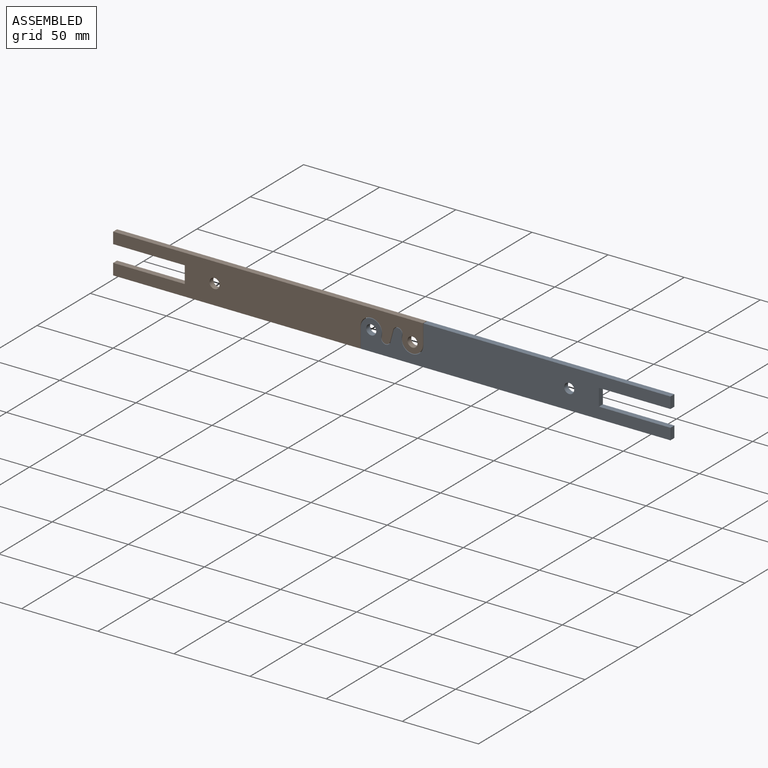
[diagram: assembled view]
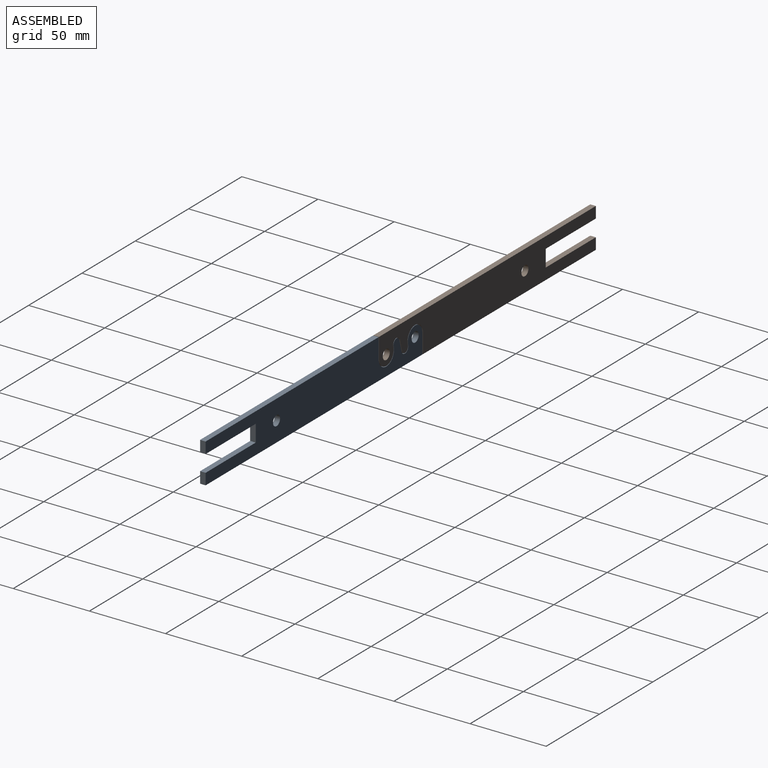
[diagram: assembled view, second angle]
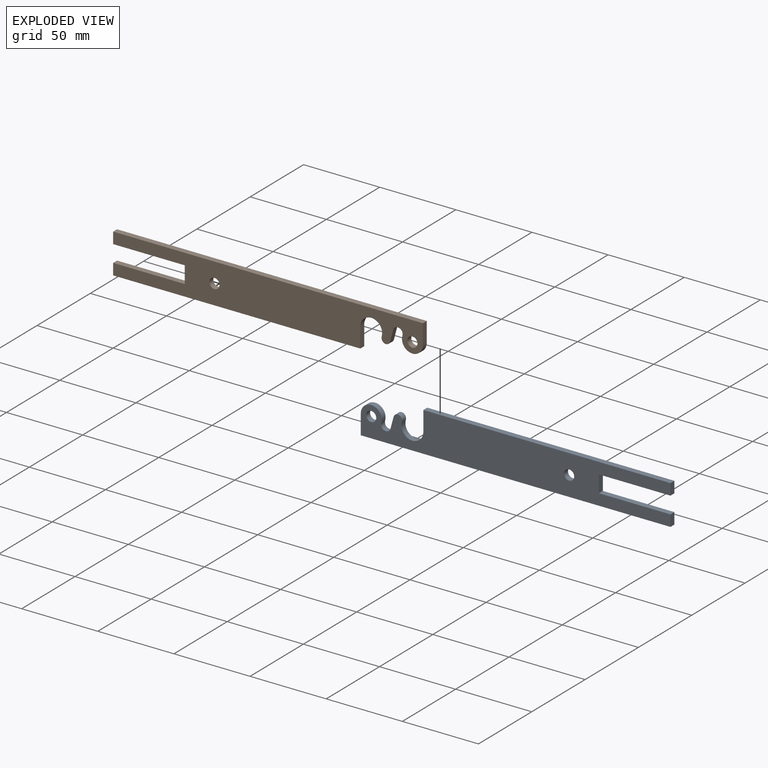
[diagram: exploded view]
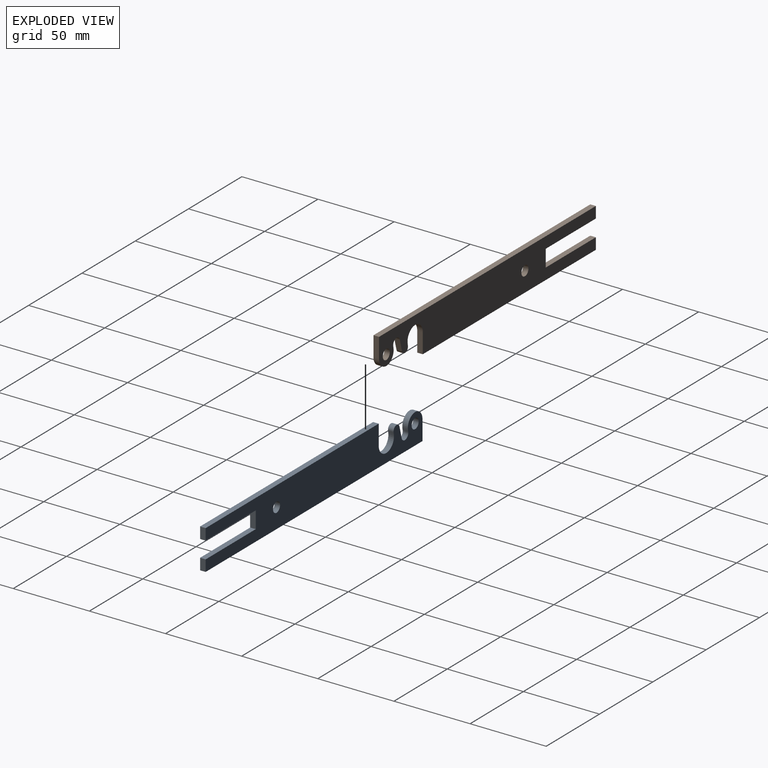
[diagram: exploded view, second angle]
ASSEMBLY  parts=2 mates=2
PART A: 20 faces, bbox 203.4x3.7x26 mm
  f0: cylinder r=3.3mm len=6.6mm, axis (0,1,0), area 75.7mm2, adj f1,f16
  f1: plane 203.39x26mm, normal (0,1,0), area 4150.7mm2, adj f0,f2,f3,f4,f5,f6,f7,f8
  f2: cylinder r=3.3mm len=6.6mm, axis (0,1,0), area 75.7mm2, adj f1,f16
  f3: plane 13x3.65mm, normal (1,0,0), area 47.4mm2, adj f1,f4,f12,f16
  f4: cylinder r=7.15mm len=14.3mm, axis (0,1,0), area 86.5mm2, adj f1,f3,f5,f16
  f5: plane 3.65x1.26mm, normal (-0.98,0,0.17), area 4.7mm2, adj f1,f4,f6,f16
  f6: cylinder r=2.85mm len=5.6mm, axis (0,1,0), area 31.8mm2, adj f1,f5,f7,f16
  f7: plane 7.55x3.65mm, normal (0.97,0,-0.26), area 28.5mm2, adj f1,f6,f8,f16
  f8: cylinder r=3.15mm len=6.19mm, axis (0,1,0), area 35.1mm2, adj f1,f7,f9,f16
  f9: plane 3.65x1.26mm, normal (-0.98,0,0.17), area 4.7mm2, adj f1,f8,f10,f16
  f10: cylinder r=6.85mm len=13.7mm, axis (0,1,0), area 82.9mm2, adj f1,f9,f11,f16
  f11: plane 13x3.65mm, normal (1,0,0), area 47.4mm2, adj f1,f10,f16,f17
  f12: plane 162.32x3.65mm, normal (0,0,-1), area 592.4mm2, adj f1,f3,f16,f19
  f13: plane 47x3.65mm, normal (0,0,-1), area 171.5mm2, adj f1,f15,f16,f18
  f14: plane 47x3.65mm, normal (0,0,1), area 171.5mm2, adj f1,f15,f16,f19
  f15: plane 11.14x3.65mm, normal (-1,0,0), area 40.7mm2, adj f1,f13,f14,f16
  f16: plane 203.39x26mm, normal (0,-1,0), area 4150.7mm2, adj f0,f2,f3,f4,f5,f6,f7,f8
  f17: plane 203.39x3.65mm, normal (0,0,1), area 742.4mm2, adj f1,f11,f16,f18
  f18: plane 7.43x3.65mm, normal (-1,0,0), area 27.1mm2, adj f1,f13,f16,f17
  f19: plane 7.43x3.65mm, normal (-1,0,0), area 27.1mm2, adj f1,f12,f14,f16
PART B: same geometry as A
PLACE A rot(axis=(0,1,0),180deg) t=(0,0,258)mm
PLACE B at identity fixed
MATE revolute B.f4 <-> A.f0  axis (0,-1,0) through (-13.53,-174.2,129)mm
MATE revolute B.f0 <-> A.f4  axis (0,1,0) through (13.53,-172.37,129)mm
